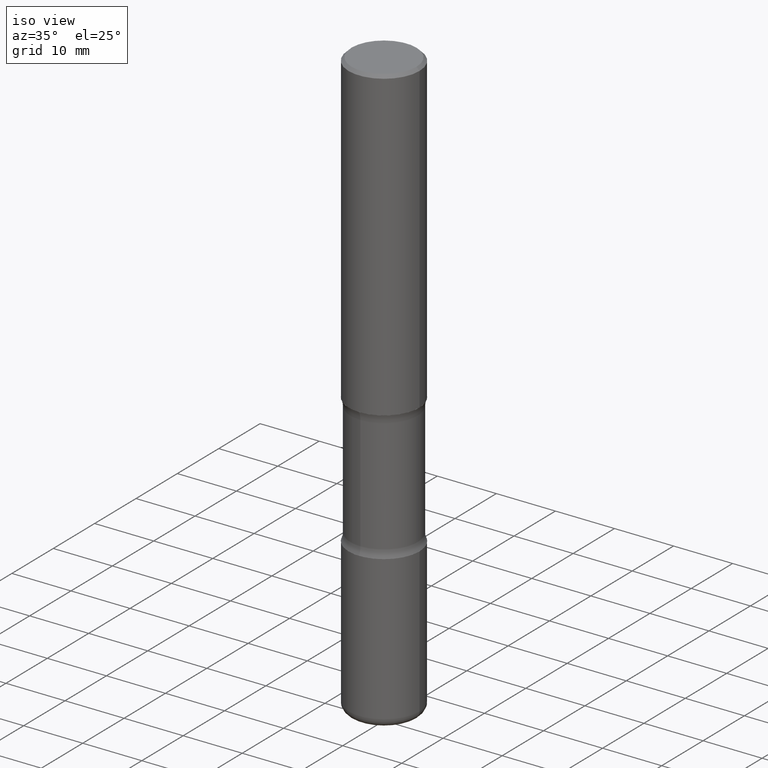
[diagram: clean part render]
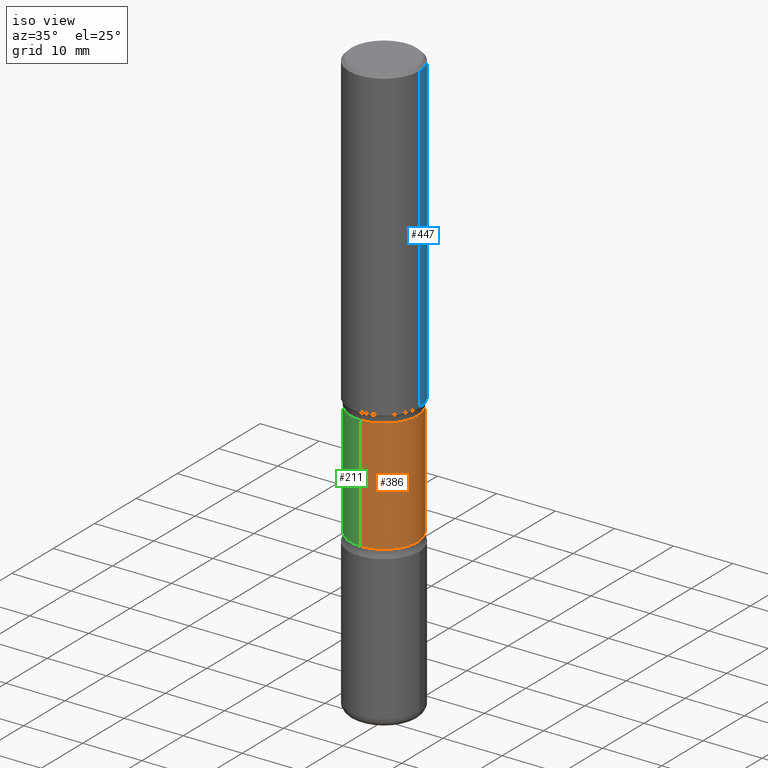
[diagram: same view with three faces highlighted in distinct colors, each labeled with its STEP entity id]
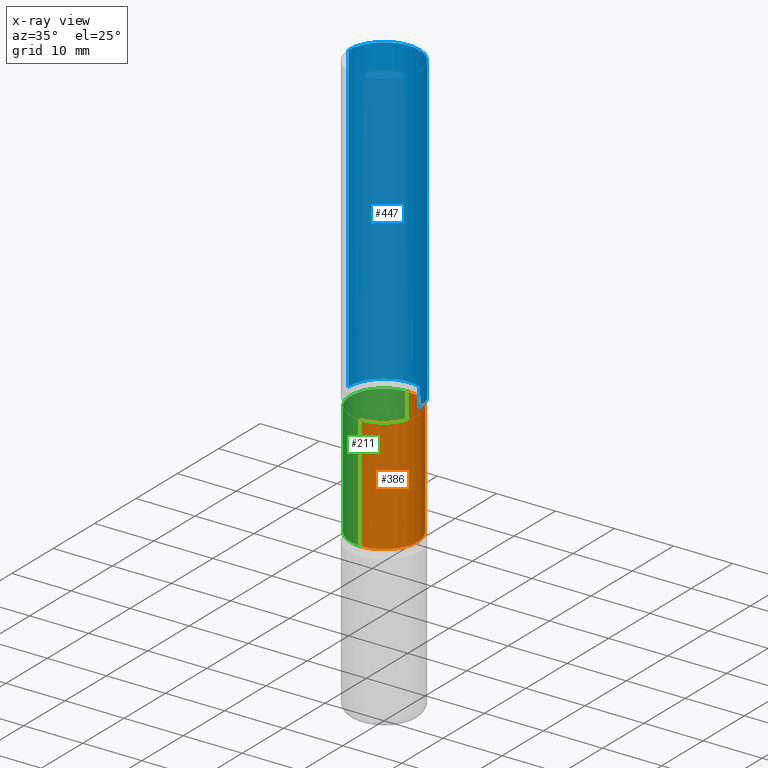
[diagram: x-ray of the same camera — body ghosted, the three highlighted faces saturated]
A machine part, iso view with three faces highlighted in distinct colors.
The next image is the same camera in x-ray (body ghosted, the three faces saturated) — at least one of them is partly hidden behind the body in this view.
Their STEP definitions:

[orange] entity #386 — the highlighted cylindrical surface (partial cylindrical patch) has radius 5.6998 mm, axis along (0, -0, -1).
#3 = CARTESIAN_POINT ( 'NONE',  ( 5.070539682259229331E-29, -7.426630284172150130E-15, -2.100216601173595432 ) ) ;
#12 = DIRECTION ( 'NONE',  ( 2.525985086076564115E-29, -3.376177443336566513E-15, -1.000000000000000000 ) ) ;
#17 = ORIENTED_EDGE ( 'NONE', *, *, #32, .F. ) ;
#28 = CIRCLE ( 'NONE', #177, 0.2243999999999999606 ) ;
#32 = EDGE_CURVE ( 'NONE', #323, #358, #488, .T. ) ;
#55 = CARTESIAN_POINT ( 'NONE',  ( 9.710227154047748282E-29, -1.362793696358492956E-14, -3.937000000000000277 ) ) ;
#64 = VERTEX_POINT ( 'NONE', #457 ) ;
#71 = EDGE_LOOP ( 'NONE', ( #234, #387, #196, #17 ) ) ;
#72 = VECTOR ( 'NONE', #439, 39.37007874015748143 ) ;
#102 = EDGE_CURVE ( 'NONE', #323, #532, #222, .T. ) ;
#103 = CARTESIAN_POINT ( 'NONE',  ( 1.566976824872894642E-15, 0.2243999999999863049, -3.937000000000000721 ) ) ;
#143 = DIRECTION ( 'NONE',  ( 2.525985086076564115E-29, -3.376177443336566513E-15, -1.000000000000000000 ) ) ;
#147 = DIRECTION ( 'NONE',  ( 2.525985086076564115E-29, -3.376177443336566513E-15, -1.000000000000000000 ) ) ;
#152 = CARTESIAN_POINT ( 'NONE',  ( -1.539495750699834052E-15, -0.2244000000000135608, -3.936999999999999389 ) ) ;
#177 = AXIS2_PLACEMENT_3D ( 'NONE', #269, #12, #186 ) ;
#186 = DIRECTION ( 'NONE',  ( 6.982962677686265922E-15, 1.000000000000000000, -2.434802133390609421E-15 ) ) ;
#195 = DIRECTION ( 'NONE',  ( 2.525985086076564115E-29, -3.376177443336566513E-15, -1.000000000000000000 ) ) ;
#196 = ORIENTED_EDGE ( 'NONE', *, *, #368, .F. ) ;
#222 = CIRCLE ( 'NONE', #413, 0.2243999999999999606 ) ;
#234 = ORIENTED_EDGE ( 'NONE', *, *, #102, .T. ) ;
#265 = CARTESIAN_POINT ( 'NONE',  ( 1.566976824872848494E-15, 0.2243999999999925499, -2.100216601173596320 ) ) ;
#269 = CARTESIAN_POINT ( 'NONE',  ( 6.990709676060807691E-29, -9.993088279580958225E-15, -2.860383398826405354 ) ) ;
#319 = VECTOR ( 'NONE', #147, 39.37007874015748143 ) ;
#323 = VERTEX_POINT ( 'NONE', #265 ) ;
#358 = VERTEX_POINT ( 'NONE', #485 ) ;
#365 = EDGE_CURVE ( 'NONE', #532, #64, #533, .T. ) ;
#368 = EDGE_CURVE ( 'NONE', #358, #64, #28, .T. ) ;
#386 = ADVANCED_FACE ( 'NONE', ( #434 ), #529, .T. ) ;
#387 = ORIENTED_EDGE ( 'NONE', *, *, #365, .T. ) ;
#413 = AXIS2_PLACEMENT_3D ( 'NONE', #3, #143, #428 ) ;
#428 = DIRECTION ( 'NONE',  ( 6.982962677686265922E-15, 1.000000000000000000, -3.652203200085913934E-15 ) ) ;
#434 = FACE_OUTER_BOUND ( 'NONE', #71, .T. ) ;
#439 = DIRECTION ( 'NONE',  ( 2.525985086076564115E-29, -3.376177443336566513E-15, -1.000000000000000000 ) ) ;
#457 = CARTESIAN_POINT ( 'NONE',  ( -1.579972688886713168E-15, -0.2244000000000099804, -2.860383398826404466 ) ) ;
#481 = AXIS2_PLACEMENT_3D ( 'NONE', #55, #195, #522 ) ;
#485 = CARTESIAN_POINT ( 'NONE',  ( 1.566976824872867821E-15, 0.2243999999999899686, -2.860383398826405799 ) ) ;
#488 = LINE ( 'NONE', #103, #72 ) ;
#522 = DIRECTION ( 'NONE',  ( 6.982962677686265922E-15, 1.000000000000000000, -2.434802133390609815E-15 ) ) ;
#529 = CYLINDRICAL_SURFACE ( 'NONE', #481, 0.2243999999999999329 ) ;
#532 = VERTEX_POINT ( 'NONE', #538 ) ;
#533 = LINE ( 'NONE', #152, #319 ) ;
#538 = CARTESIAN_POINT ( 'NONE',  ( -1.579972688886734072E-15, -0.2244000000000073713, -2.100216601173594544 ) ) ;

[blue] entity #447 — the highlighted cylindrical surface (partial cylindrical patch) has radius 5.9995 mm, axis along (-0, 0, 1).
#8 = EDGE_CURVE ( 'NONE', #21, #9, #61, .T. ) ;
#9 = VERTEX_POINT ( 'NONE', #107 ) ;
#14 = ORIENTED_EDGE ( 'NONE', *, *, #8, .T. ) ;
#19 = DIRECTION ( 'NONE',  ( -2.445468806185136877E-29, 3.491481338843145188E-15, 1.000000000000000000 ) ) ;
#21 = VERTEX_POINT ( 'NONE', #436 ) ;
#41 = DIRECTION ( 'NONE',  ( 1.000000000000000000, -6.982962677686267499E-15, 0.000000000000000000 ) ) ;
#44 = EDGE_LOOP ( 'NONE', ( #262, #14, #523, #67 ) ) ;
#61 = LINE ( 'NONE', #444, #452 ) ;
#67 = ORIENTED_EDGE ( 'NONE', *, *, #150, .F. ) ;
#68 = CARTESIAN_POINT ( 'NONE',  ( 0.2362000000000001321, -8.797136381349186305E-15, -2.047200000000000131 ) ) ;
#77 = FACE_OUTER_BOUND ( 'NONE', #44, .T. ) ;
#83 = DIRECTION ( 'NONE',  ( -2.445468806185136877E-29, 3.491481338843145188E-15, 1.000000000000000000 ) ) ;
#107 = CARTESIAN_POINT ( 'NONE',  ( -0.2361999999999998823, 1.579546157692632438E-15, -0.02000000000000006981 ) ) ;
#113 = DIRECTION ( 'NONE',  ( -2.445468806185136597E-29, 3.491481338843145583E-15, 1.000000000000000000 ) ) ;
#115 = EDGE_CURVE ( 'NONE', #540, #9, #332, .T. ) ;
#133 = CARTESIAN_POINT ( 'NONE',  ( 4.890937612370289799E-31, -6.982962677686315028E-17, -0.02000000000000006981 ) ) ;
#139 = AXIS2_PLACEMENT_3D ( 'NONE', #399, #113, #240 ) ;
#150 = EDGE_CURVE ( 'NONE', #505, #540, #487, .T. ) ;
#157 = DIRECTION ( 'NONE',  ( 1.000000000000000000, -6.982962677686269077E-15, 0.000000000000000000 ) ) ;
#185 = CIRCLE ( 'NONE', #341, 0.2362000000000001321 ) ;
#240 = DIRECTION ( 'NONE',  ( 1.000000000000000000, -6.982962677686266711E-15, 4.876176775795936353E-29 ) ) ;
#262 = ORIENTED_EDGE ( 'NONE', *, *, #456, .T. ) ;
#287 = DIRECTION ( 'NONE',  ( -2.445468806185136597E-29, 3.491481338843145583E-15, 1.000000000000000000 ) ) ;
#307 = VECTOR ( 'NONE', #83, 39.37007874015748143 ) ;
#332 = CIRCLE ( 'NONE', #440, 0.2361999999999998823 ) ;
#341 = AXIS2_PLACEMENT_3D ( 'NONE', #496, #287, #157 ) ;
#367 = CYLINDRICAL_SURFACE ( 'NONE', #139, 0.2361999999999999933 ) ;
#399 = CARTESIAN_POINT ( 'NONE',  ( 0.000000000000000000, 0.000000000000000000, 0.000000000000000000 ) ) ;
#436 = CARTESIAN_POINT ( 'NONE',  ( -0.2362000000000001598, -1.930493169962915017E-15, -2.047200000000000131 ) ) ;
#440 = AXIS2_PLACEMENT_3D ( 'NONE', #133, #468, #41 ) ;
#444 = CARTESIAN_POINT ( 'NONE',  ( -0.2361999999999999933, 1.678301941865356591E-15, -1.161852468318208757E-29 ) ) ;
#447 = ADVANCED_FACE ( 'NONE', ( #77 ), #367, .T. ) ;
#452 = VECTOR ( 'NONE', #19, 39.37007874015748143 ) ;
#456 = EDGE_CURVE ( 'NONE', #505, #21, #185, .T. ) ;
#468 = DIRECTION ( 'NONE',  ( -2.445468806185136597E-29, 3.491481338843145583E-15, 1.000000000000000000 ) ) ;
#487 = LINE ( 'NONE', #507, #307 ) ;
#496 = CARTESIAN_POINT ( 'NONE',  ( 5.006363740022212241E-29, -7.147760596879688202E-15, -2.047200000000000131 ) ) ;
#505 = VERTEX_POINT ( 'NONE', #68 ) ;
#507 = CARTESIAN_POINT ( 'NONE',  ( 0.2361999999999999933, -1.649375784469496131E-15, 1.151752954443000088E-29 ) ) ;
#523 = ORIENTED_EDGE ( 'NONE', *, *, #115, .F. ) ;
#535 = CARTESIAN_POINT ( 'NONE',  ( 0.2361999999999998823, -1.690279253850498179E-15, -0.02000000000000006981 ) ) ;
#540 = VERTEX_POINT ( 'NONE', #535 ) ;

[green] entity #211 — the highlighted cylindrical surface (partial cylindrical patch) has radius 5.6998 mm, axis along (0, -0, -1).
#32 = EDGE_CURVE ( 'NONE', #323, #358, #488, .T. ) ;
#64 = VERTEX_POINT ( 'NONE', #457 ) ;
#72 = VECTOR ( 'NONE', #439, 39.37007874015748143 ) ;
#75 = DIRECTION ( 'NONE',  ( 2.525985086076564115E-29, -3.376177443336566513E-15, -1.000000000000000000 ) ) ;
#92 = CARTESIAN_POINT ( 'NONE',  ( 6.990709676060807691E-29, -9.993088279580958225E-15, -2.860383398826405354 ) ) ;
#100 = ORIENTED_EDGE ( 'NONE', *, *, #512, .T. ) ;
#101 = DIRECTION ( 'NONE',  ( 2.525985086076564115E-29, -3.376177443336566513E-15, -1.000000000000000000 ) ) ;
#103 = CARTESIAN_POINT ( 'NONE',  ( 1.566976824872894642E-15, 0.2243999999999863049, -3.937000000000000721 ) ) ;
#112 = ORIENTED_EDGE ( 'NONE', *, *, #32, .T. ) ;
#138 = DIRECTION ( 'NONE',  ( 2.525985086076564115E-29, -3.376177443336566513E-15, -1.000000000000000000 ) ) ;
#147 = DIRECTION ( 'NONE',  ( 2.525985086076564115E-29, -3.376177443336566513E-15, -1.000000000000000000 ) ) ;
#152 = CARTESIAN_POINT ( 'NONE',  ( -1.539495750699834052E-15, -0.2244000000000135608, -3.936999999999999389 ) ) ;
#155 = DIRECTION ( 'NONE',  ( 6.982962677686265922E-15, 1.000000000000000000, -2.434802133390609421E-15 ) ) ;
#175 = CARTESIAN_POINT ( 'NONE',  ( 9.710227154047748282E-29, -1.362793696358492956E-14, -3.937000000000000277 ) ) ;
#211 = ADVANCED_FACE ( 'NONE', ( #215 ), #556, .T. ) ;
#215 = FACE_OUTER_BOUND ( 'NONE', #491, .T. ) ;
#235 = CARTESIAN_POINT ( 'NONE',  ( 5.070539682259229331E-29, -7.426630284172150130E-15, -2.100216601173595432 ) ) ;
#265 = CARTESIAN_POINT ( 'NONE',  ( 1.566976824872848494E-15, 0.2243999999999925499, -2.100216601173596320 ) ) ;
#266 = AXIS2_PLACEMENT_3D ( 'NONE', #235, #75, #490 ) ;
#319 = VECTOR ( 'NONE', #147, 39.37007874015748143 ) ;
#323 = VERTEX_POINT ( 'NONE', #265 ) ;
#338 = DIRECTION ( 'NONE',  ( 6.982962677686265922E-15, 1.000000000000000000, -2.434802133390609815E-15 ) ) ;
#354 = CIRCLE ( 'NONE', #266, 0.2243999999999999606 ) ;
#358 = VERTEX_POINT ( 'NONE', #485 ) ;
#365 = EDGE_CURVE ( 'NONE', #532, #64, #533, .T. ) ;
#391 = EDGE_CURVE ( 'NONE', #64, #358, #421, .T. ) ;
#421 = CIRCLE ( 'NONE', #471, 0.2243999999999999606 ) ;
#439 = DIRECTION ( 'NONE',  ( 2.525985086076564115E-29, -3.376177443336566513E-15, -1.000000000000000000 ) ) ;
#457 = CARTESIAN_POINT ( 'NONE',  ( -1.579972688886713168E-15, -0.2244000000000099804, -2.860383398826404466 ) ) ;
#458 = ORIENTED_EDGE ( 'NONE', *, *, #365, .F. ) ;
#471 = AXIS2_PLACEMENT_3D ( 'NONE', #92, #101, #155 ) ;
#485 = CARTESIAN_POINT ( 'NONE',  ( 1.566976824872867821E-15, 0.2243999999999899686, -2.860383398826405799 ) ) ;
#488 = LINE ( 'NONE', #103, #72 ) ;
#490 = DIRECTION ( 'NONE',  ( 6.982962677686265922E-15, 1.000000000000000000, -3.652203200085913934E-15 ) ) ;
#491 = EDGE_LOOP ( 'NONE', ( #458, #100, #112, #537 ) ) ;
#512 = EDGE_CURVE ( 'NONE', #532, #323, #354, .T. ) ;
#532 = VERTEX_POINT ( 'NONE', #538 ) ;
#533 = LINE ( 'NONE', #152, #319 ) ;
#537 = ORIENTED_EDGE ( 'NONE', *, *, #391, .F. ) ;
#538 = CARTESIAN_POINT ( 'NONE',  ( -1.579972688886734072E-15, -0.2244000000000073713, -2.100216601173594544 ) ) ;
#554 = AXIS2_PLACEMENT_3D ( 'NONE', #175, #138, #338 ) ;
#556 = CYLINDRICAL_SURFACE ( 'NONE', #554, 0.2243999999999999329 ) ;